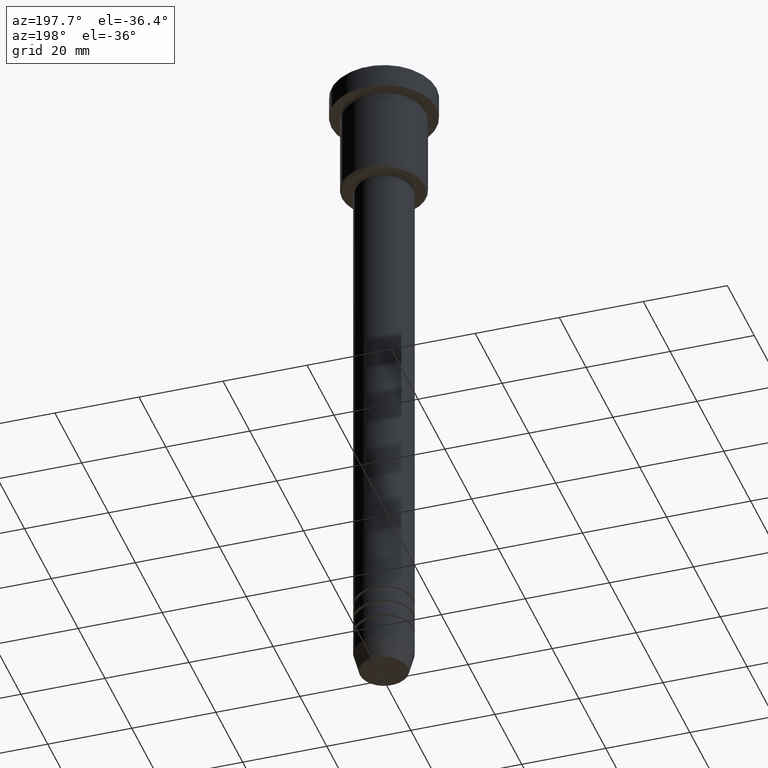
[diagram: clean part render]
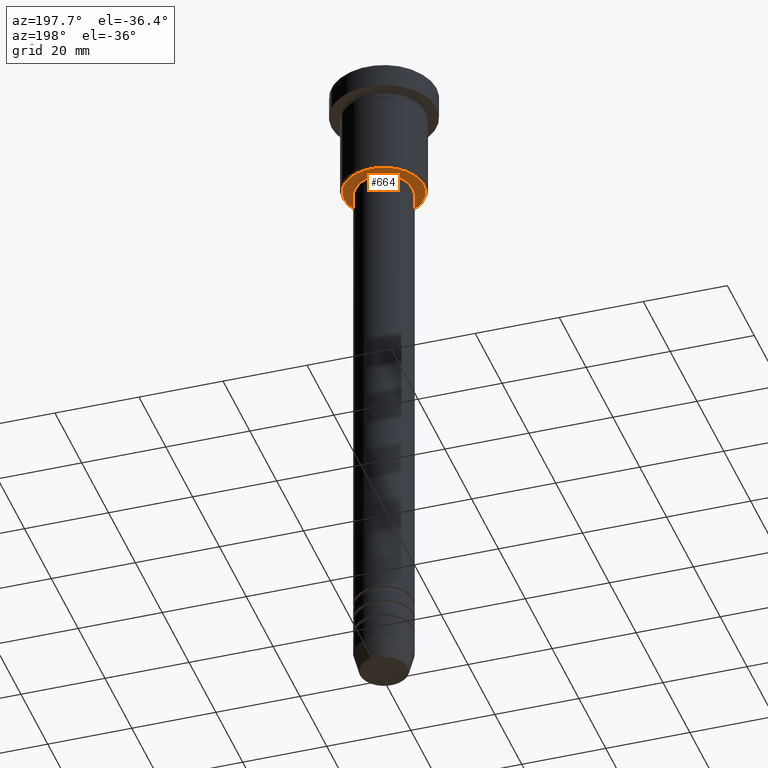
[diagram: same view with one face highlighted and labeled with its STEP entity id]
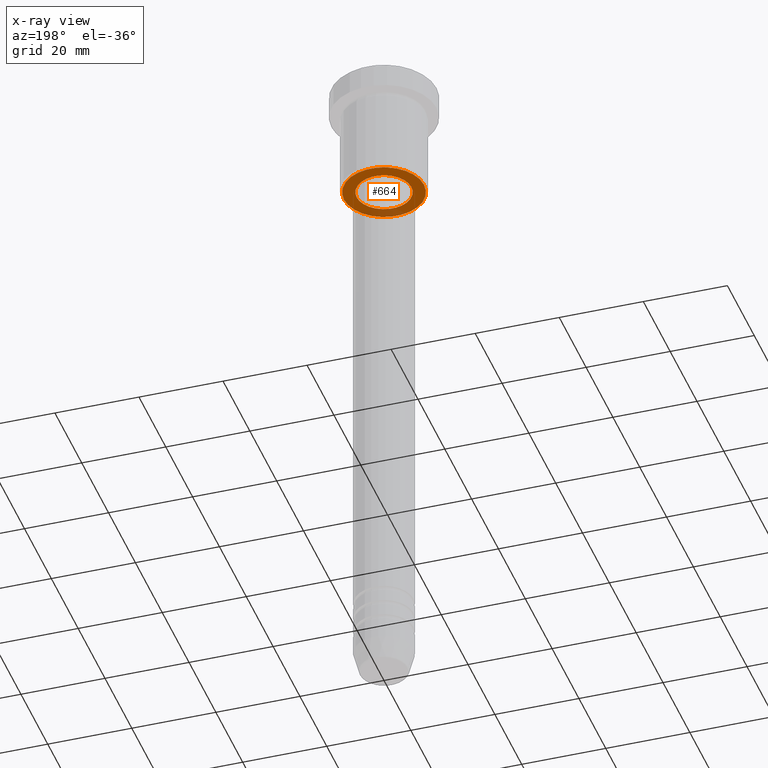
[diagram: x-ray of the same camera — body ghosted, the highlighted face saturated]
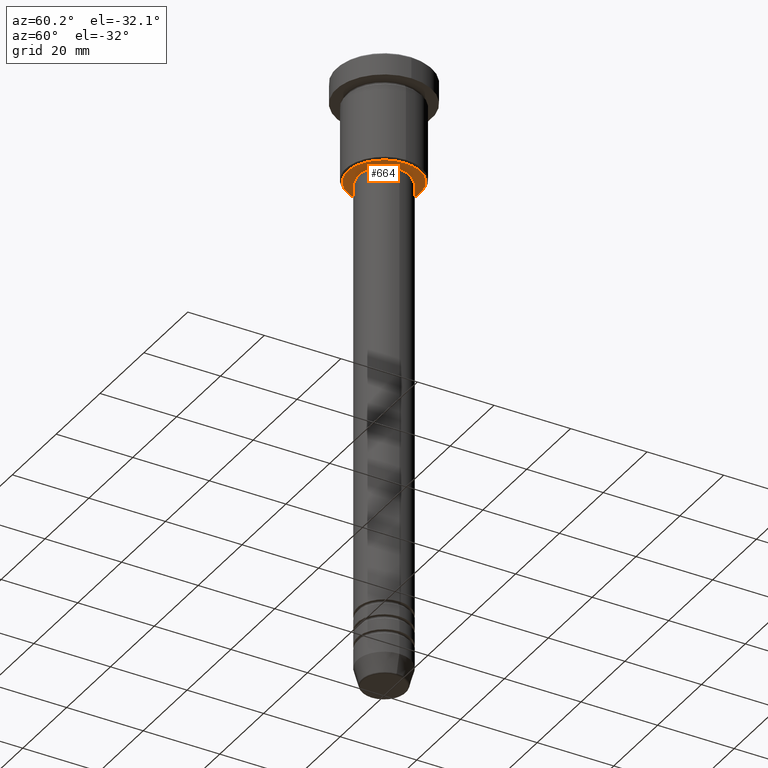
[diagram: same view with one face highlighted and labeled with its STEP entity id]
A machine part, auxiliary view. The second image highlights one B-rep face of the part: STEP entity #664.
The next image is the same camera in x-ray: the body ghosted, the highlighted face saturated — about 14% of this face is hidden behind the body in this view.
A second angle (auxiliary view) of the same face is appended — the face is thin or edge-on in the first view.
In plain terms, the highlighted planar face has unit normal (0, 0, -1).
Its self-contained STEP definition (entity closure, byte-faithful):
#11 = ORIENTED_EDGE ( 'NONE', *, *, #613, .T. ) ;
#46 = DIRECTION ( 'NONE',  ( -1.000000000000000000, 0.000000000000000000, 0.000000000000000000 ) ) ;
#64 = ORIENTED_EDGE ( 'NONE', *, *, #606, .T. ) ;
#88 = VERTEX_POINT ( 'NONE', #569 ) ;
#126 = CARTESIAN_POINT ( 'NONE',  ( 0.000000000000000000, 10.00000000000000000, -27.00000000000001776 ) ) ;
#132 = ORIENTED_EDGE ( 'NONE', *, *, #520, .T. ) ;
#159 = DIRECTION ( 'NONE',  ( -0.000000000000000000, -0.000000000000000000, 1.000000000000000000 ) ) ;
#222 = AXIS2_PLACEMENT_3D ( 'NONE', #926, #392, #758 ) ;
#323 = CIRCLE ( 'NONE', #222, 6.500000000000000000 ) ;
#338 = CARTESIAN_POINT ( 'NONE',  ( 6.500000000000000000, 0.000000000000000000, -27.00000000000001776 ) ) ;
#349 = VERTEX_POINT ( 'NONE', #338 ) ;
#364 = CARTESIAN_POINT ( 'NONE',  ( 0.000000000000000000, 0.000000000000000000, -27.00000000000001776 ) ) ;
#392 = DIRECTION ( 'NONE',  ( -0.000000000000000000, -0.000000000000000000, 1.000000000000000000 ) ) ;
#395 = EDGE_CURVE ( 'NONE', #440, #349, #624, .T. ) ;
#420 = FACE_BOUND ( 'NONE', #654, .T. ) ;
#440 = VERTEX_POINT ( 'NONE', #761 ) ;
#480 = CIRCLE ( 'NONE', #1115, 9.499999999999980460 ) ;
#497 = DIRECTION ( 'NONE',  ( 0.000000000000000000, 0.000000000000000000, -1.000000000000000000 ) ) ;
#508 = FACE_OUTER_BOUND ( 'NONE', #638, .T. ) ;
#520 = EDGE_CURVE ( 'NONE', #349, #440, #323, .T. ) ;
#569 = CARTESIAN_POINT ( 'NONE',  ( -9.499999999999980460, 1.194030629168668286E-15, -27.00000000000001776 ) ) ;
#587 = CARTESIAN_POINT ( 'NONE',  ( 0.000000000000000000, 0.000000000000000000, -27.00000000000001776 ) ) ;
#606 = EDGE_CURVE ( 'NONE', #803, #88, #480, .T. ) ;
#610 = CARTESIAN_POINT ( 'NONE',  ( 0.000000000000000000, 0.000000000000000000, -27.00000000000001776 ) ) ;
#613 = EDGE_CURVE ( 'NONE', #88, #803, #733, .T. ) ;
#624 = CIRCLE ( 'NONE', #925, 6.500000000000000000 ) ;
#638 = EDGE_LOOP ( 'NONE', ( #64, #11 ) ) ;
#654 = EDGE_LOOP ( 'NONE', ( #132, #1034 ) ) ;
#664 = ADVANCED_FACE ( 'NONE', ( #508, #420 ), #948, .T. ) ;
#685 = DIRECTION ( 'NONE',  ( -1.000000000000000000, 0.000000000000000000, -0.000000000000000000 ) ) ;
#733 = CIRCLE ( 'NONE', #954, 9.499999999999980460 ) ;
#744 = CARTESIAN_POINT ( 'NONE',  ( 9.499999999999980460, 0.000000000000000000, -27.00000000000001776 ) ) ;
#758 = DIRECTION ( 'NONE',  ( 1.000000000000000000, 0.000000000000000000, 0.000000000000000000 ) ) ;
#761 = CARTESIAN_POINT ( 'NONE',  ( -6.500000000000000000, 7.960204194457795477E-16, -27.00000000000001776 ) ) ;
#803 = VERTEX_POINT ( 'NONE', #744 ) ;
#873 = DIRECTION ( 'NONE',  ( 0.000000000000000000, 0.000000000000000000, -1.000000000000000000 ) ) ;
#925 = AXIS2_PLACEMENT_3D ( 'NONE', #364, #159, #1101 ) ;
#926 = CARTESIAN_POINT ( 'NONE',  ( 0.000000000000000000, 0.000000000000000000, -27.00000000000001776 ) ) ;
#948 = PLANE ( 'NONE',  #1150 ) ;
#954 = AXIS2_PLACEMENT_3D ( 'NONE', #610, #1059, #1046 ) ;
#1034 = ORIENTED_EDGE ( 'NONE', *, *, #395, .T. ) ;
#1046 = DIRECTION ( 'NONE',  ( -1.000000000000000000, 0.000000000000000000, 0.000000000000000000 ) ) ;
#1059 = DIRECTION ( 'NONE',  ( 0.000000000000000000, 0.000000000000000000, -1.000000000000000000 ) ) ;
#1101 = DIRECTION ( 'NONE',  ( 1.000000000000000000, 0.000000000000000000, 0.000000000000000000 ) ) ;
#1115 = AXIS2_PLACEMENT_3D ( 'NONE', #587, #873, #46 ) ;
#1150 = AXIS2_PLACEMENT_3D ( 'NONE', #126, #497, #685 ) ;